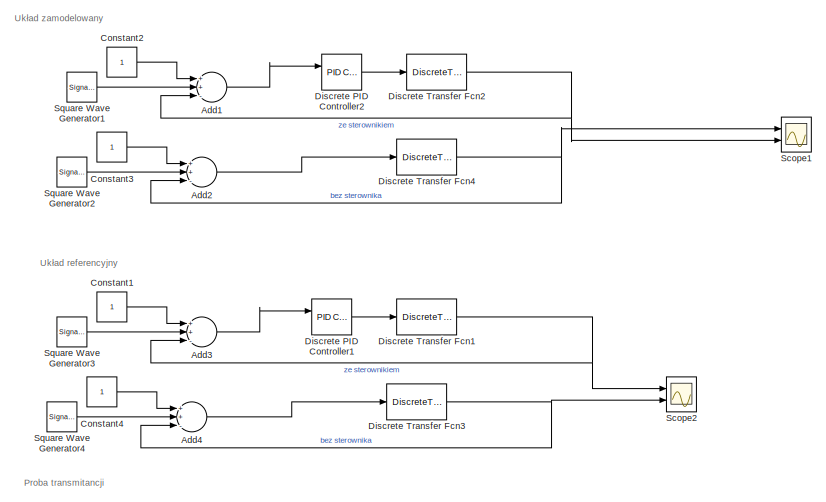
[diagram: root canvas - part 1/2, top center region]
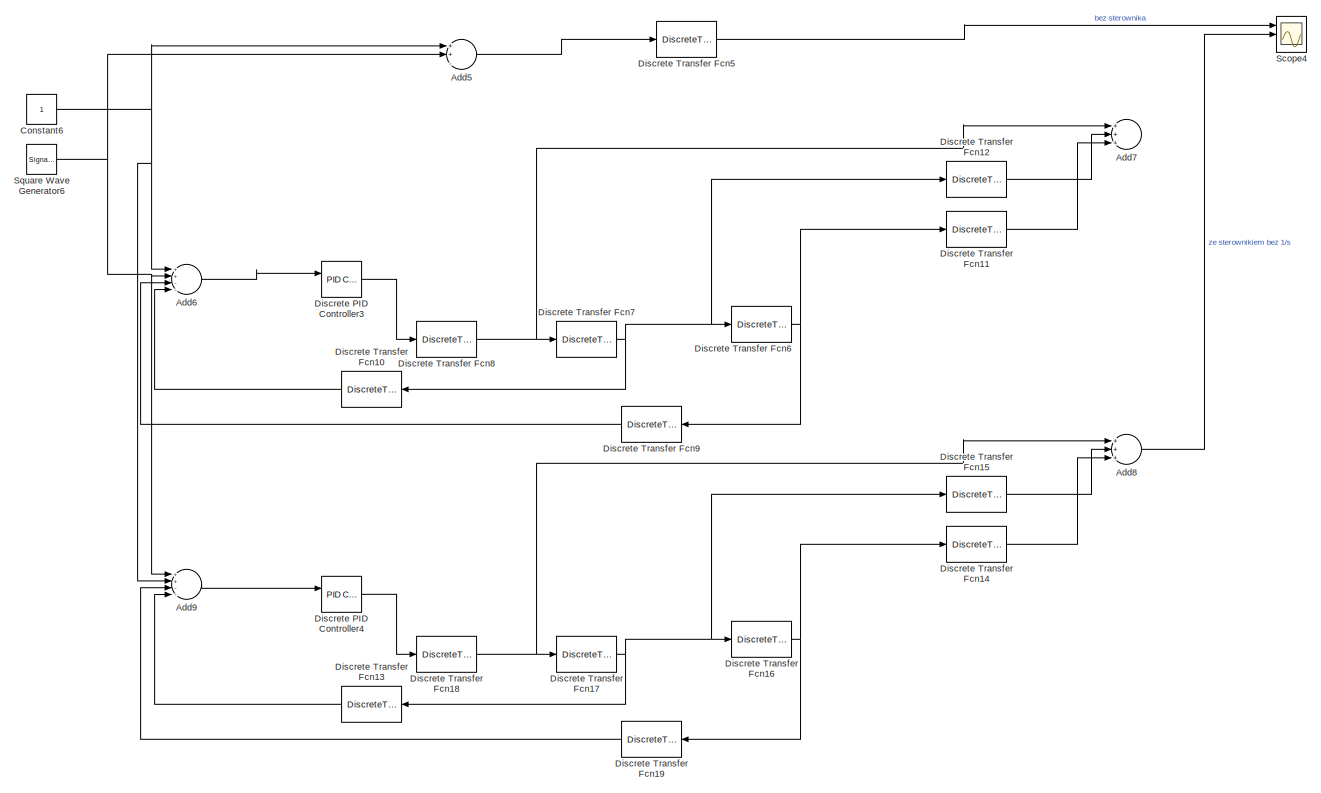
[diagram: root canvas - part 2/2, full width, bottom band]
MODEL slx_f9c163dfc001
KIND model
CONFIG AbsTol = auto
CONFIG EnableMultiTasking = off
CONFIG FixedStep = auto
CONFIG MaxStep = auto
CONFIG MinStep = auto
CONFIG RelTol = 1e-3
CONFIG SampleTimeConstraint = Unconstrained
CONFIG Solver = VariableStepAuto
CONFIG SolverName = VariableStepAuto
CONFIG StartTime = 0.0
CONFIG StopTime = 10.0
BLOCK [Sum] Add1
  InputSameDT = off
  Inputs = ++-
  OutDataTypeStr = Inherit: Inherit via internal rule
  Ports = [3, 1]
  SaturateOnIntegerOverflow = off
BLOCK [Sum] Add2
  InputSameDT = off
  Inputs = ++-
  OutDataTypeStr = Inherit: Inherit via internal rule
  Ports = [3, 1]
  SaturateOnIntegerOverflow = off
BLOCK [Sum] Add3
  InputSameDT = off
  Inputs = ++-
  OutDataTypeStr = Inherit: Inherit via internal rule
  Ports = [3, 1]
  SaturateOnIntegerOverflow = off
BLOCK [Sum] Add4
  InputSameDT = off
  Inputs = ++-
  OutDataTypeStr = Inherit: Inherit via internal rule
  Ports = [3, 1]
  SaturateOnIntegerOverflow = off
BLOCK [Sum] Add5
  InputSameDT = off
  Inputs = ++-
  OutDataTypeStr = Inherit: Inherit via internal rule
  Ports = [3, 1]
  SaturateOnIntegerOverflow = off
BLOCK [Sum] Add6
  InputSameDT = off
  Inputs = ++--
  OutDataTypeStr = Inherit: Inherit via internal rule
  Ports = [4, 1]
  SaturateOnIntegerOverflow = off
BLOCK [Sum] Add7
  InputSameDT = off
  Inputs = +++
  OutDataTypeStr = Inherit: Inherit via internal rule
  Ports = [3, 1]
  SaturateOnIntegerOverflow = off
BLOCK [Sum] Add8
  InputSameDT = off
  Inputs = +++
  OutDataTypeStr = Inherit: Inherit via internal rule
  Ports = [3, 1]
  SaturateOnIntegerOverflow = off
BLOCK [Sum] Add9
  InputSameDT = off
  Inputs = ++--
  OutDataTypeStr = Inherit: Inherit via internal rule
  Ports = [4, 1]
  SaturateOnIntegerOverflow = off
BLOCK [Constant] Constant1
BLOCK [Constant] Constant2
BLOCK [Constant] Constant3
BLOCK [Constant] Constant4
BLOCK [Constant] Constant6
BLOCK [Reference] Discrete PID Controller1  REF=simulink/Continuous/PID Controller
  Ports = [2, 1]
  SourceBlock = simulink/Continuous/PID Controller
  SourceProductBaseCode = SL
  SourceProductName = Simulink
  SourceType = PID 1dof
BLOCK [Reference] Discrete PID Controller2  REF=simulink/Continuous/PID Controller
  Ports = [2, 1]
  SourceBlock = simulink/Continuous/PID Controller
  SourceProductBaseCode = SL
  SourceProductName = Simulink
  SourceType = PID 1dof
BLOCK [Reference] Discrete PID Controller3  REF=simulink/Continuous/PID Controller
  Ports = [2, 1]
  SourceBlock = simulink/Continuous/PID Controller
  SourceProductBaseCode = SL
  SourceProductName = Simulink
  SourceType = PID 1dof
BLOCK [Reference] Discrete PID Controller4  REF=simulink/Continuous/PID Controller
  Ports = [2, 1]
  SourceBlock = simulink/Continuous/PID Controller
  SourceProductBaseCode = SL
  SourceProductName = Simulink
  SourceType = PID 1dof
BLOCK [DiscreteTransferFcn] Discrete Transfer Fcn1
  Denominator = [ 4.74 1 0]
  InputPortMap = u0
  Numerator = [3.35]
  Ports = [1, 1]
  SampleTime = 0.005
BLOCK [DiscreteTransferFcn] Discrete Transfer Fcn10
  Denominator = [ 1 ]
  InputPortMap = u0
  Numerator = [0.125]
  Ports = [1, 1]
  SampleTime = 0.005
BLOCK [DiscreteTransferFcn] Discrete Transfer Fcn11
  Denominator = [1]
  InputPortMap = u0
  Numerator = [7]
  Ports = [1, 1]
  SampleTime = 0.005
BLOCK [DiscreteTransferFcn] Discrete Transfer Fcn12
  Denominator = [1]
  InputPortMap = u0
  Numerator = [-2]
  Ports = [1, 1]
  SampleTime = 0.005
BLOCK [DiscreteTransferFcn] Discrete Transfer Fcn13
  Denominator = [ 1 ]
  InputPortMap = u0
  Numerator = [0.125]
  Ports = [1, 1]
  SampleTime = 0.005
BLOCK [DiscreteTransferFcn] Discrete Transfer Fcn14
  Denominator = [1]
  InputPortMap = u0
  Numerator = [7]
  Ports = [1, 1]
  SampleTime = 0.005
BLOCK [DiscreteTransferFcn] Discrete Transfer Fcn15
  Denominator = [1]
  InputPortMap = u0
  Numerator = [-2]
  Ports = [1, 1]
  SampleTime = 0.005
BLOCK [DiscreteTransferFcn] Discrete Transfer Fcn16
  Denominator = [ 1 0 ]
  InputPortMap = u0
  Ports = [1, 1]
  SampleTime = 0.005
BLOCK [DiscreteTransferFcn] Discrete Transfer Fcn17
  Denominator = [ 1 0 ]
  InputPortMap = u0
  Ports = [1, 1]
  SampleTime = 0.005
BLOCK [DiscreteTransferFcn] Discrete Transfer Fcn18
  Denominator = [ 1 0 ]
  InputPortMap = u0
  Ports = [1, 1]
  SampleTime = 0.005
BLOCK [DiscreteTransferFcn] Discrete Transfer Fcn19
  Denominator = [1]
  InputPortMap = u0
  Numerator = [-0.43]
  Ports = [1, 1]
  SampleTime = 0.005
BLOCK [DiscreteTransferFcn] Discrete Transfer Fcn2
  Denominator = [ 4.74 1 0]
  InputPortMap = u0
  Numerator = [3.35]
  Ports = [1, 1]
  SampleTime = 0.005
BLOCK [DiscreteTransferFcn] Discrete Transfer Fcn3
  Denominator = [ 4.74 1 0]
  InputPortMap = u0
  Numerator = [3.35]
  Ports = [1, 1]
  SampleTime = 0.005
BLOCK [DiscreteTransferFcn] Discrete Transfer Fcn4
  Denominator = [ 4.74 1 0]
  InputPortMap = u0
  Numerator = [3.35]
  Ports = [1, 1]
  SampleTime = 0.005
BLOCK [DiscreteTransferFcn] Discrete Transfer Fcn5
  Denominator = [ 1 0 0.125 -0.4375]
  InputPortMap = u0
  Numerator = [1 -2 7]
  Ports = [1, 1]
  SampleTime = 0.005
BLOCK [DiscreteTransferFcn] Discrete Transfer Fcn6
  Denominator = [ 1 0 ]
  InputPortMap = u0
  Ports = [1, 1]
  SampleTime = 0.005
BLOCK [DiscreteTransferFcn] Discrete Transfer Fcn7
  Denominator = [ 1 0 ]
  InputPortMap = u0
  Ports = [1, 1]
  SampleTime = 0.005
BLOCK [DiscreteTransferFcn] Discrete Transfer Fcn8
  Denominator = [ 1 0 ]
  InputPortMap = u0
  Ports = [1, 1]
  SampleTime = 0.005
BLOCK [DiscreteTransferFcn] Discrete Transfer Fcn9
  Denominator = [1]
  InputPortMap = u0
  Numerator = [-0.43]
  Ports = [1, 1]
  SampleTime = 0.005
BLOCK [Scope] Scope1
  Floating = off
  NumInputPorts = 2
  Ports = [2]
  ScopeSpecificationString = Simulink.scopes.TimeScopeBlockCfg('CurrentConfiguration', extmgr.ConfigurationSet(extmgr.Configuration('Core','General UI',true),extmgr.Configuration('Core','Source UI',true),extmgr.Configuration('Sources','WiredSimulink',true,'DataLoggingVariableName','ScopeData1'),extmgr.Configuration('Visuals','Time Domain',true,'SerializedDisplays',{struct('MinYLimReal','-1.0109','MaxYLimReal','2.33369','YLabe...<+1870ch>
BLOCK [Scope] Scope2
  Floating = off
  NumInputPorts = 2
  Ports = [2]
  ScopeSpecificationString = Simulink.scopes.TimeScopeBlockCfg('CurrentConfiguration', extmgr.ConfigurationSet(extmgr.Configuration('Core','General UI',true),extmgr.Configuration('Core','Source UI',true),extmgr.Configuration('Sources','WiredSimulink',true,'DataLoggingVariableName','ScopeData1'),extmgr.Configuration('Visuals','Time Domain',true,'SerializedDisplays',{struct('MinYLimReal','-1.0109','MaxYLimReal','2.33369','YLabe...<+1872ch>
BLOCK [Scope] Scope4
  Floating = off
  NumInputPorts = 3
  Ports = [3]
  ScopeSpecificationString = Simulink.scopes.TimeScopeBlockCfg('CurrentConfiguration', extmgr.ConfigurationSet(extmgr.Configuration('Core','General UI',true),extmgr.Configuration('Core','Source UI',true),extmgr.Configuration('Sources','WiredSimulink',true,'DataLoggingVariableName','ScopeData3'),extmgr.Configuration('Visuals','Time Domain',true,'SerializedDisplays',{struct('MinYLimReal','-4.43872','MaxYLimReal','19.93255','YLa...<+1993ch>
BLOCK [SignalGenerator] Square Wave Generator1
  Frequency = 10
  Ports = [0, 1]
  Units = rad/sec
  WaveForm = square
BLOCK [SignalGenerator] Square Wave Generator2
  Frequency = 10
  Ports = [0, 1]
  Units = rad/sec
  WaveForm = square
BLOCK [SignalGenerator] Square Wave Generator3
  Frequency = 10
  Ports = [0, 1]
  Units = rad/sec
  WaveForm = square
BLOCK [SignalGenerator] Square Wave Generator4
  Frequency = 10
  Ports = [0, 1]
  Units = rad/sec
  WaveForm = square
BLOCK [SignalGenerator] Square Wave Generator6
  Ports = [0, 1]
  Units = rad/sec
  WaveForm = square
ANNOTATION (root): Proba transmitancji
ANNOTATION (root): Układ referencyjny
ANNOTATION (root): Układ zamodelowany
LINE Add1:1 -> Discrete PID Controller2:1
LINE Add2:1 -> Discrete Transfer Fcn4:1
LINE Add3:1 -> Discrete PID Controller1:1
LINE Add4:1 -> Discrete Transfer Fcn3:1
LINE Add5:1 -> Discrete Transfer Fcn5:1
LINE Add6:1 -> Discrete PID Controller3:1
LINE Add8:1 -> Scope4:2
LINE Add9:1 -> Discrete PID Controller4:1
LINE Constant1:1 -> Add3:1
LINE Constant2:1 -> Add1:1
LINE Constant3:1 -> Add2:1
LINE Constant4:1 -> Add4:1
NET Constant6:1 -> Add5:1, Add6:1, Add9:2
LINE Discrete PID Controller1:1 -> Discrete Transfer Fcn1:1
LINE Discrete PID Controller2:1 -> Discrete Transfer Fcn2:1
LINE Discrete PID Controller3:1 -> Discrete Transfer Fcn8:1
LINE Discrete PID Controller4:1 -> Discrete Transfer Fcn18:1
LINE Discrete Transfer Fcn10:1 -> Add6:4
LINE Discrete Transfer Fcn11:1 -> Add7:3
LINE Discrete Transfer Fcn12:1 -> Add7:2
LINE Discrete Transfer Fcn13:1 -> Add9:4
LINE Discrete Transfer Fcn14:1 -> Add8:3
LINE Discrete Transfer Fcn15:1 -> Add8:2
NET Discrete Transfer Fcn16:1 -> Discrete Transfer Fcn14:1, Discrete Transfer Fcn19:1
NET Discrete Transfer Fcn17:1 -> Discrete Transfer Fcn13:1, Discrete Transfer Fcn15:1, Discrete Transfer Fcn16:1
NET Discrete Transfer Fcn18:1 -> Add8:1, Discrete Transfer Fcn17:1
LINE Discrete Transfer Fcn19:1 -> Add9:3
NET Discrete Transfer Fcn1:1 -> Add3:3, Scope2:1
NET Discrete Transfer Fcn2:1 -> Add1:3, Scope1:2
NET Discrete Transfer Fcn3:1 -> Add4:3, Scope2:2
NET Discrete Transfer Fcn4:1 -> Add2:3, Scope1:1
LINE Discrete Transfer Fcn5:1 -> Scope4:1
NET Discrete Transfer Fcn6:1 -> Discrete Transfer Fcn11:1, Discrete Transfer Fcn9:1
NET Discrete Transfer Fcn7:1 -> Discrete Transfer Fcn10:1, Discrete Transfer Fcn12:1, Discrete Transfer Fcn6:1
NET Discrete Transfer Fcn8:1 -> Add7:1, Discrete Transfer Fcn7:1
LINE Discrete Transfer Fcn9:1 -> Add6:3
LINE Square Wave Generator1:1 -> Add1:2
LINE Square Wave Generator2:1 -> Add2:2
LINE Square Wave Generator3:1 -> Add3:2
LINE Square Wave Generator4:1 -> Add4:2
NET Square Wave Generator6:1 -> Add5:2, Add6:2, Add9:1
note: NET lines group one-source signal fan-out (src -> all destinations, sorted); 1:1 wires keep LINE
